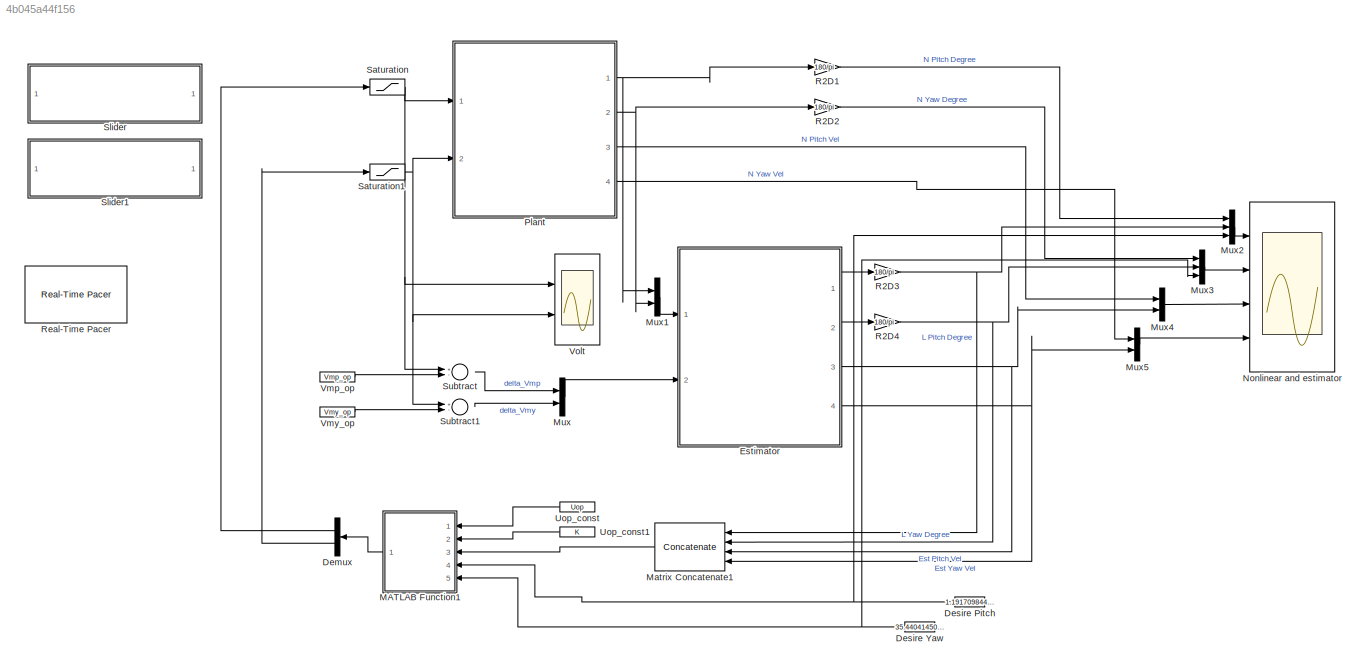
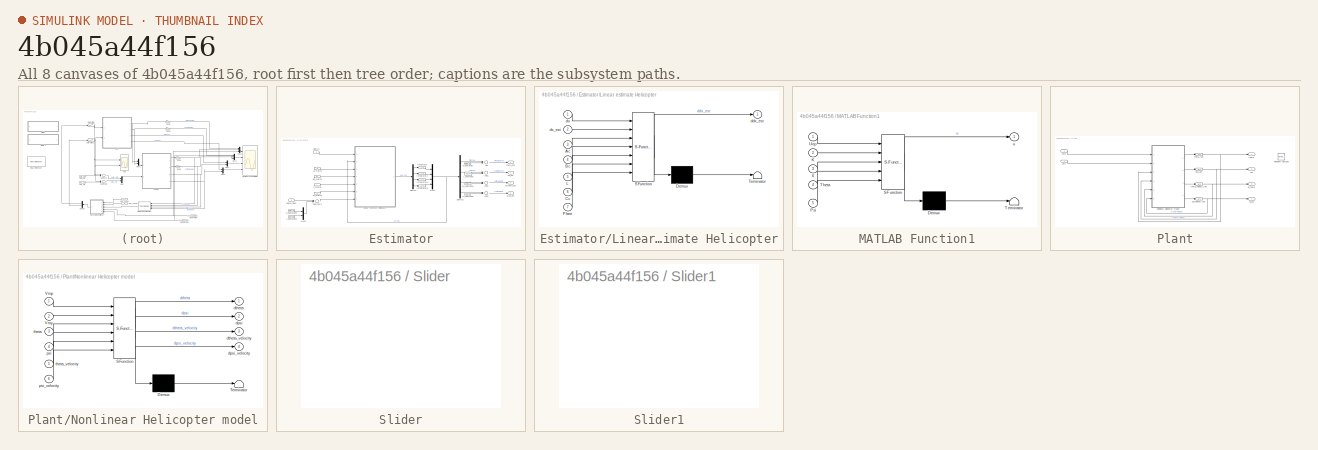
[diagram: thumbnail index - all 8 canvases of the model, root first then tree order]
MODEL slx_4b045a44f156
KIND model
CONFIG AbsTol = auto
CONFIG EnableMultiTasking = off
CONFIG FixedStep = 0.1
CONFIG MaxStep = auto
CONFIG MinStep = auto
CONFIG RelTol = 1e-3
CONFIG SampleTimeConstraint = Unconstrained
CONFIG Solver = ode4
CONFIG SolverName = ode4
CONFIG StartTime = 0.0
CONFIG StopTime = inf
BLOCK [Demux] Demux
  DisplayOption = bar
  Outputs = 2
  Ports = [1, 2]
BLOCK [Constant] Desire Pitch
  Value = 1.1917098445596
BLOCK [Constant] Desire Yaw
  Value = 35.440414507772
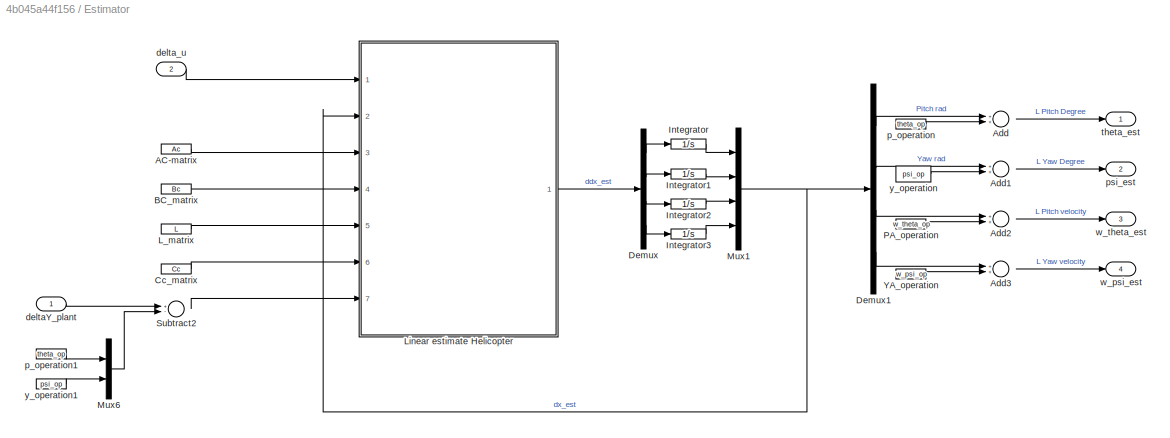
BLOCK [SubSystem] Estimator
  Ports = [2, 4]
  RequestExecContextInheritance = off
  Variant = off
BLOCK [Constant] Estimator/AC-matrix
  Value = Ac
BLOCK [Sum] Estimator/Add
  InputSameDT = off
  OutDataTypeStr = Inherit: Inherit via internal rule
  Ports = [2, 1]
  SaturateOnIntegerOverflow = off
BLOCK [Sum] Estimator/Add1
  InputSameDT = off
  OutDataTypeStr = Inherit: Inherit via internal rule
  Ports = [2, 1]
  SaturateOnIntegerOverflow = off
BLOCK [Sum] Estimator/Add2
  InputSameDT = off
  OutDataTypeStr = Inherit: Inherit via internal rule
  Ports = [2, 1]
  SaturateOnIntegerOverflow = off
BLOCK [Sum] Estimator/Add3
  InputSameDT = off
  OutDataTypeStr = Inherit: Inherit via internal rule
  Ports = [2, 1]
  SaturateOnIntegerOverflow = off
BLOCK [Constant] Estimator/BC_matrix
  Value = Bc
BLOCK [Constant] Estimator/Cc_matrix
  Value = Cc
BLOCK [Demux] Estimator/Demux
  DisplayOption = bar
  Ports = [1, 4]
BLOCK [Demux] Estimator/Demux1
  DisplayOption = bar
  Ports = [1, 4]
BLOCK [Integrator] Estimator/Integrator
  LimitOutput = on
  LowerSaturationLimit = -0.7854
  Ports = [1, 1]
  UpperSaturationLimit = 0.9604
BLOCK [Integrator] Estimator/Integrator1
  LimitOutput = on
  LowerSaturationLimit = 0-1.570
  Ports = [1, 1]
  UpperSaturationLimit = pi-1.570
BLOCK [Integrator] Estimator/Integrator2
  Ports = [1, 1]
BLOCK [Integrator] Estimator/Integrator3
  Ports = [1, 1]
BLOCK [Constant] Estimator/L_matrix
  Value = L
BLOCK [SubSystem] Estimator/Linear estimate Helicopter
  ErrorFcn = Stateflow.Translate.translate
  PermitHierarchicalResolution = ExplicitOnly
  Ports = [7, 1]
  RequestExecContextInheritance = off
  SFBlockType = MATLAB Function
  TreatAsAtomicUnit = on
  Variant = off
BLOCK [Demux] Estimator/Linear estimate Helicopter/ Demux 
  Outputs = 1
  Ports = [1, 1]
BLOCK [S-Function] Estimator/Linear estimate Helicopter/ SFunction 
  EnableBusSupport = on
  FunctionName = sf_sfun
  PortCounts = [7 2]
  Ports = [7, 2]
  SFcnIsStateOwnerBlock = off
  SFunctionDeploymentMode = off
  Tag = Stateflow S-Function Linear_heli_model_LQR 3
BLOCK [Terminator] Estimator/Linear estimate Helicopter/ Terminator 
BLOCK [Inport] Estimator/Linear estimate Helicopter/Ac
  IconDisplay = Port number
  Port = 3
BLOCK [Inport] Estimator/Linear estimate Helicopter/Bc
  IconDisplay = Port number
  Port = 4
BLOCK [Inport] Estimator/Linear estimate Helicopter/Cc
  IconDisplay = Port number
  Port = 6
BLOCK [Inport] Estimator/Linear estimate Helicopter/L
  IconDisplay = Port number
  Port = 5
BLOCK [Inport] Estimator/Linear estimate Helicopter/Plant
  IconDisplay = Port number
  Port = 7
BLOCK [Outport] Estimator/Linear estimate Helicopter/ddx_est
  IconDisplay = Port number
BLOCK [Inport] Estimator/Linear estimate Helicopter/du
  IconDisplay = Port number
BLOCK [Inport] Estimator/Linear estimate Helicopter/dx_est
  IconDisplay = Port number
  Port = 2
BLOCK [Mux] Estimator/Mux1
  DisplayOption = bar
  Ports = [4, 1]
BLOCK [Mux] Estimator/Mux6
  DisplayOption = bar
  Inputs = 2
  Ports = [2, 1]
BLOCK [Constant] Estimator/PA_operation
  Value = w_theta_op
BLOCK [Sum] Estimator/Subtract2
  InputSameDT = off
  Inputs = +-
  OutDataTypeStr = Inherit: Inherit via internal rule
  Ports = [2, 1]
  SaturateOnIntegerOverflow = off
BLOCK [Constant] Estimator/YA_operation
  Value = w_psi_op
BLOCK [Inport] Estimator/deltaY_plant
  IconDisplay = Port number
BLOCK [Inport] Estimator/delta_u
  IconDisplay = Port number
  Port = 2
BLOCK [Constant] Estimator/p_operation
  Value = theta_op
BLOCK [Constant] Estimator/p_operation1
  Value = theta_op
  VectorParams1D = off
BLOCK [Outport] Estimator/psi_est
  IconDisplay = Port number
  Port = 2
BLOCK [Outport] Estimator/theta_est
  IconDisplay = Port number
BLOCK [Outport] Estimator/w_psi_est
  IconDisplay = Port number
  Port = 4
BLOCK [Outport] Estimator/w_theta_est
  IconDisplay = Port number
  Port = 3
BLOCK [Constant] Estimator/y_operation
  Value = psi_op
BLOCK [Constant] Estimator/y_operation1
  Value = psi_op
  VectorParams1D = off
BLOCK [SubSystem] MATLAB Function1
  ErrorFcn = Stateflow.Translate.translate
  PermitHierarchicalResolution = ExplicitOnly
  Ports = [5, 1]
  RequestExecContextInheritance = off
  SFBlockType = MATLAB Function
  TreatAsAtomicUnit = on
  Variant = off
BLOCK [Demux] MATLAB Function1/ Demux 
  Outputs = 1
  Ports = [1, 1]
BLOCK [S-Function] MATLAB Function1/ SFunction 
  EnableBusSupport = on
  FunctionName = sf_sfun
  PortCounts = [5 2]
  Ports = [5, 2]
  SFcnIsStateOwnerBlock = off
  SFunctionDeploymentMode = off
  Tag = Stateflow S-Function Linear_heli_model_LQR 6
BLOCK [Terminator] MATLAB Function1/ Terminator 
BLOCK [Inport] MATLAB Function1/K
  IconDisplay = Port number
  Port = 2
BLOCK [Inport] MATLAB Function1/Psi
  IconDisplay = Port number
  Port = 5
BLOCK [Inport] MATLAB Function1/Theta
  IconDisplay = Port number
  Port = 4
BLOCK [Inport] MATLAB Function1/Uop
  IconDisplay = Port number
BLOCK [Inport] MATLAB Function1/X
  IconDisplay = Port number
  Port = 3
BLOCK [Outport] MATLAB Function1/u
  IconDisplay = Port number
BLOCK [Concatenate] Matrix Concatenate1
  Mode = Multidimensional array
  NumInputs = 4
  Ports = [4, 1]
BLOCK [Mux] Mux
  DisplayOption = bar
  Inputs = 2
  Ports = [2, 1]
BLOCK [Mux] Mux1
  DisplayOption = bar
  Inputs = 2
  Ports = [2, 1]
BLOCK [Mux] Mux2
  DisplayOption = bar
  Inputs = 3
  Ports = [3, 1]
BLOCK [Mux] Mux3
  DisplayOption = bar
  Inputs = 3
  Ports = [3, 1]
BLOCK [Mux] Mux4
  DisplayOption = bar
  Inputs = 2
  Ports = [2, 1]
BLOCK [Mux] Mux5
  DisplayOption = bar
  Inputs = 2
  Ports = [2, 1]
BLOCK [Scope] Nonlinear and estimator
  NumInputPorts = 4
  Ports = [4]
  ScopeSpecificationString = Simulink.scopes.TimeScopeBlockCfg('CurrentConfiguration', extmgr.ConfigurationSet(extmgr.Configuration('Core','General UI',true),extmgr.Configuration('Core','Source UI',true),extmgr.Configuration('Sources','WiredSimulink',true,'DataLoggingVariableName','ScopeData1'),extmgr.Configuration('Visuals','Time Domain',true,'SerializedDisplays',{struct('MinYLimReal','-40','MaxYLimReal','20','YLabelReal','D...<+3941ch>
BLOCK [SubSystem] Plant
  Ports = [2, 4]
  RequestExecContextInheritance = off
  Variant = off
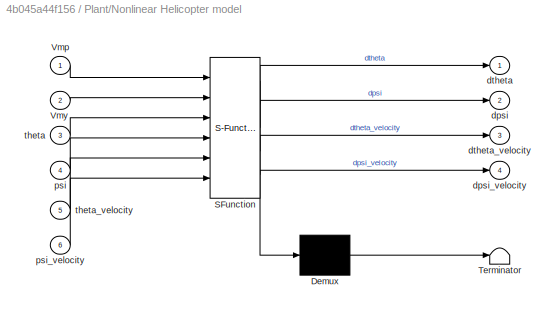
BLOCK [SubSystem] Plant/Nonlinear Helicopter model
  ErrorFcn = Stateflow.Translate.translate
  PermitHierarchicalResolution = ExplicitOnly
  Ports = [6, 4]
  RequestExecContextInheritance = off
  SFBlockType = MATLAB Function
  TreatAsAtomicUnit = on
  Variant = off
BLOCK [Demux] Plant/Nonlinear Helicopter model/ Demux 
  Outputs = 1
  Ports = [1, 1]
BLOCK [S-Function] Plant/Nonlinear Helicopter model/ SFunction 
  EnableBusSupport = on
  FunctionName = sf_sfun
  PortCounts = [6 5]
  Ports = [6, 5]
  SFcnIsStateOwnerBlock = off
  SFunctionDeploymentMode = off
  Tag = Stateflow S-Function Linear_heli_model_LQR 2
BLOCK [Terminator] Plant/Nonlinear Helicopter model/ Terminator 
BLOCK [Inport] Plant/Nonlinear Helicopter model/Vmp
  IconDisplay = Port number
BLOCK [Inport] Plant/Nonlinear Helicopter model/Vmy
  IconDisplay = Port number
  Port = 2
BLOCK [Outport] Plant/Nonlinear Helicopter model/dpsi
  IconDisplay = Port number
  Port = 2
BLOCK [Outport] Plant/Nonlinear Helicopter model/dpsi_velocity
  IconDisplay = Port number
  Port = 4
BLOCK [Outport] Plant/Nonlinear Helicopter model/dtheta
  IconDisplay = Port number
BLOCK [Outport] Plant/Nonlinear Helicopter model/dtheta_velocity
  IconDisplay = Port number
  Port = 3
BLOCK [Inport] Plant/Nonlinear Helicopter model/psi
  IconDisplay = Port number
  Port = 4
BLOCK [Inport] Plant/Nonlinear Helicopter model/psi_velocity
  IconDisplay = Port number
  Port = 6
BLOCK [Inport] Plant/Nonlinear Helicopter model/theta
  IconDisplay = Port number
  Port = 3
BLOCK [Inport] Plant/Nonlinear Helicopter model/theta_velocity
  IconDisplay = Port number
  Port = 5
BLOCK [RandomNumber] Plant/Random Number
  Variance = 0.0001
BLOCK [Inport] Plant/Vmp
  IconDisplay = Port number
BLOCK [Inport] Plant/Vmy
  IconDisplay = Port number
  Port = 2
BLOCK [Outport] Plant/psi
  IconDisplay = Port number
  Port = 2
BLOCK [Integrator] Plant/psi_rad
  InitialCondition = psi_op
  LimitOutput = on
  LowerSaturationLimit = 0
  Ports = [1, 1]
  UpperSaturationLimit = pi
BLOCK [Integrator] Plant/psi_velocity_rad
  InitialCondition = w_psi_op
  Ports = [1, 1]
BLOCK [Outport] Plant/theta
  IconDisplay = Port number
BLOCK [Integrator] Plant/theta_rad
  InitialCondition = theta_op
  LimitOutput = on
  LowerSaturationLimit = -0.7854
  Ports = [1, 1]
  UpperSaturationLimit = 0.7854
BLOCK [Integrator] Plant/theta_velocity_rad
  InitialCondition = w_theta_op
  Ports = [1, 1]
BLOCK [Outport] Plant/w_psi
  IconDisplay = Port number
  Port = 4
BLOCK [Outport] Plant/w_theta
  IconDisplay = Port number
  Port = 3
BLOCK [Gain] R2D1
  Gain = 180/pi
  OutDataTypeStr = Inherit: Inherit via internal rule
  ParamDataTypeStr = Inherit: Inherit via internal rule
  SaturateOnIntegerOverflow = off
BLOCK [Gain] R2D2
  Gain = 180/pi
  OutDataTypeStr = Inherit: Inherit via internal rule
  ParamDataTypeStr = Inherit: Inherit via internal rule
  SaturateOnIntegerOverflow = off
BLOCK [Gain] R2D3
  Gain = 180/pi
  OutDataTypeStr = Inherit: Inherit via internal rule
  ParamDataTypeStr = Inherit: Inherit via internal rule
  SaturateOnIntegerOverflow = off
BLOCK [Gain] R2D4
  Gain = 180/pi
  OutDataTypeStr = Inherit: Inherit via internal rule
  ParamDataTypeStr = Inherit: Inherit via internal rule
  SaturateOnIntegerOverflow = off
BLOCK [Reference] Real-Time Pacer  REF=realtime_pacer_lib/Real-Time Pacer
  Ports = []
  SourceBlock = realtime_pacer_lib/Real-Time Pacer
  SourceType = RealTime_Pacer
BLOCK [Saturate] Saturation
  InputPortMap = u0
  LowerLimit = 0
  Ports = [1, 1]
  UpperLimit = 3
BLOCK [Saturate] Saturation1
  InputPortMap = u0
  LowerLimit = 0
  Ports = [1, 1]
  UpperLimit = 3
BLOCK [SubSystem] Slider
  DialogController = hmiCreateDDGDialog
  IsWebBlock = on
  MaskHideContents = on
  Ports = []
  RequestExecContextInheritance = off
  Variant = off
BLOCK [SubSystem] Slider1
  DialogController = hmiCreateDDGDialog
  IsWebBlock = on
  MaskHideContents = on
  Ports = []
  RequestExecContextInheritance = off
  Variant = off
BLOCK [Sum] Subtract
  InputSameDT = off
  Inputs = +-
  OutDataTypeStr = Inherit: Inherit via internal rule
  Ports = [2, 1]
  SaturateOnIntegerOverflow = off
BLOCK [Sum] Subtract1
  InputSameDT = off
  Inputs = +-
  OutDataTypeStr = Inherit: Inherit via internal rule
  Ports = [2, 1]
  SaturateOnIntegerOverflow = off
BLOCK [Constant] Uop_const
  Value = Uop
BLOCK [Constant] Uop_const1
  Value = K
BLOCK [Constant] Vmp_op
  Value = Vmp_op
BLOCK [Constant] Vmy_op
  Value = Vmy_op
BLOCK [Scope] Volt
  NumInputPorts = 2
  Ports = [2]
  ScopeSpecificationString = Simulink.scopes.TimeScopeBlockCfg('CurrentConfiguration', extmgr.ConfigurationSet(extmgr.Configuration('Core','General UI',true),extmgr.Configuration('Core','Source UI',true),extmgr.Configuration('Sources','WiredSimulink',true,'DataLoggingVariableName','ScopeData1'),extmgr.Configuration('Visuals','Time Domain',true,'SerializedDisplays',{struct('MinYLimReal','0','MaxYLimReal','3','YLabelReal','Vmp'...<+2199ch>
LINE Demux:1 -> Saturation:1
LINE Demux:2 -> Saturation1:1
NET Desire Pitch:1 -> MATLAB Function1:4, Mux2:3
NET Desire Yaw:1 -> MATLAB Function1:5, Mux3:3
LINE Estimator/AC-matrix:1 -> Estimator/Linear estimate Helicopter:3
LINE Estimator/Add1:1 -> Estimator/psi_est:1
LINE Estimator/Add2:1 -> Estimator/w_theta_est:1
LINE Estimator/Add3:1 -> Estimator/w_psi_est:1
LINE Estimator/Add:1 -> Estimator/theta_est:1
LINE Estimator/BC_matrix:1 -> Estimator/Linear estimate Helicopter:4
LINE Estimator/Cc_matrix:1 -> Estimator/Linear estimate Helicopter:6
LINE Estimator/Demux1:1 -> Estimator/Add:1
LINE Estimator/Demux1:2 -> Estimator/Add1:1
LINE Estimator/Demux1:3 -> Estimator/Add2:1
LINE Estimator/Demux1:4 -> Estimator/Add3:1
LINE Estimator/Demux:1 -> Estimator/Integrator:1
LINE Estimator/Demux:2 -> Estimator/Integrator1:1
LINE Estimator/Demux:3 -> Estimator/Integrator2:1
LINE Estimator/Demux:4 -> Estimator/Integrator3:1
LINE Estimator/Integrator1:1 -> Estimator/Mux1:2
LINE Estimator/Integrator2:1 -> Estimator/Mux1:3
LINE Estimator/Integrator3:1 -> Estimator/Mux1:4
LINE Estimator/Integrator:1 -> Estimator/Mux1:1
LINE Estimator/L_matrix:1 -> Estimator/Linear estimate Helicopter:5
LINE Estimator/Linear estimate Helicopter:1 -> Estimator/Demux:1
NET Estimator/Mux1:1 -> Estimator/Demux1:1, Estimator/Linear estimate Helicopter:2
LINE Estimator/Mux6:1 -> Estimator/Subtract2:2
LINE Estimator/PA_operation:1 -> Estimator/Add2:2
LINE Estimator/Subtract2:1 -> Estimator/Linear estimate Helicopter:7
LINE Estimator/YA_operation:1 -> Estimator/Add3:2
LINE Estimator/deltaY_plant:1 -> Estimator/Subtract2:1
LINE Estimator/delta_u:1 -> Estimator/Linear estimate Helicopter:1
LINE Estimator/p_operation1:1 -> Estimator/Mux6:1
LINE Estimator/p_operation:1 -> Estimator/Add:2
LINE Estimator/y_operation1:1 -> Estimator/Mux6:2
LINE Estimator/y_operation:1 -> Estimator/Add1:2
LINE Estimator:1 -> R2D3:1
LINE Estimator:2 -> R2D4:1
NET Estimator:3 -> Matrix Concatenate1:3, Mux4:2
NET Estimator:4 -> Matrix Concatenate1:4, Mux5:2
LINE MATLAB Function1:1 -> Demux:1
LINE Matrix Concatenate1:1 -> MATLAB Function1:3
LINE Mux1:1 -> Estimator:1
LINE Mux2:1 -> Nonlinear and estimator:1
LINE Mux3:1 -> Nonlinear and estimator:2
LINE Mux4:1 -> Nonlinear and estimator:3
LINE Mux5:1 -> Nonlinear and estimator:4
LINE Mux:1 -> Estimator:2
LINE Plant/Nonlinear Helicopter model:1 -> Plant/theta_rad:1
LINE Plant/Nonlinear Helicopter model:2 -> Plant/psi_rad:1
LINE Plant/Nonlinear Helicopter model:3 -> Plant/theta_velocity_rad:1
LINE Plant/Nonlinear Helicopter model:4 -> Plant/psi_velocity_rad:1
LINE Plant/Vmp:1 -> Plant/Nonlinear Helicopter model:1
LINE Plant/Vmy:1 -> Plant/Nonlinear Helicopter model:2
NET Plant/psi_rad:1 -> Plant/Nonlinear Helicopter model:4, Plant/psi:1
NET Plant/psi_velocity_rad:1 -> Plant/Nonlinear Helicopter model:6, Plant/w_psi:1
NET Plant/theta_rad:1 -> Plant/Nonlinear Helicopter model:3, Plant/theta:1
NET Plant/theta_velocity_rad:1 -> Plant/Nonlinear Helicopter model:5, Plant/w_theta:1
NET Plant:1 -> Mux1:1, R2D1:1
NET Plant:2 -> Mux1:2, R2D2:1
LINE Plant:3 -> Mux4:1
LINE Plant:4 -> Mux5:1
LINE R2D1:1 -> Mux2:1
LINE R2D2:1 -> Mux3:1
NET R2D3:1 -> Matrix Concatenate1:1, Mux2:2
NET R2D4:1 -> Matrix Concatenate1:2, Mux3:2
NET Saturation1:1 -> Plant:2, Subtract1:1, Volt:2
NET Saturation:1 -> Plant:1, Subtract:1, Volt:1
LINE Subtract1:1 -> Mux:2
LINE Subtract:1 -> Mux:1
LINE Uop_const1:1 -> MATLAB Function1:2
LINE Uop_const:1 -> MATLAB Function1:1
LINE Vmp_op:1 -> Subtract:2
LINE Vmy_op:1 -> Subtract1:2
note: NET lines group one-source signal fan-out (src -> all destinations, sorted); 1:1 wires keep LINE
CHART Plant/Nonlinear Helicopter model states=1 transitions=1
  STATE_LABEL 'eML_blk_kernel()'
  STATE_LABEL 'SCRIPT:\nfunction [dtheta,dpsi,dtheta_velocity,dpsi_velocity] = fcn(Vmp,Vmy,theta,psi,theta_velocity,psi_velocity)\n\n%%Parameters of the system part 1\nlcm = 0.015;    %[m]            % Distance between the pivot point and center of mass\nmheli = 0.479;  %[kg]           % Total moving mass of heli\nJeqp = 0.0172; \nJeqy= 0.0210;    %[kg/m2]       % Moment of inertia pitch and yaw axis\ng = 9.81;        %...<+1006ch>'
CHART Estimator/Linear estimate Helicopter states=1 transitions=1
  STATE_LABEL 'eML_blk_kernel()'
  STATE_LABEL 'SCRIPT:\nfunction ddx_est = fcn(du,dx_est,Ac,Bc, L,Cc, Plant)\n%delta delta estimate = Ac*delta estimate + Bc *delta u + \n%L(delta plant - Cc *delta estimate\n\nddx_est=Ac*dx_est+Bc*du+L*(Plant-Cc*dx_est);\n'
CHART MATLAB Function1 states=1 transitions=1
  STATE_LABEL 'eML_blk_kernel()'
  STATE_LABEL 'SCRIPT:\nfunction u = fcn(Uop,K, X,Theta,Psi)\n\n% u = transpose(-KX+Uop);\nu = (-K*(X-[Theta;Psi;0;0]))+Uop;'
